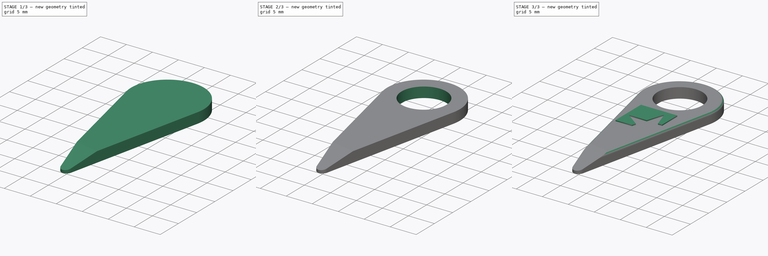
[diagram: build sequence overview — one tinted view per stage of 3, left to right]
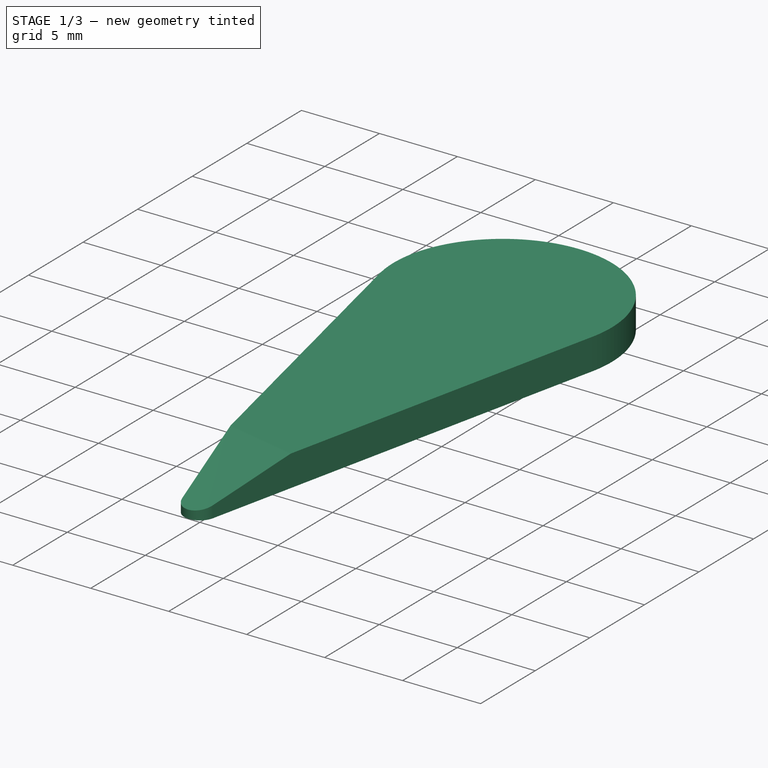
[diagram: stage 1 of 3 — iso view after this stage's code; geometry added in this stage tinted green]
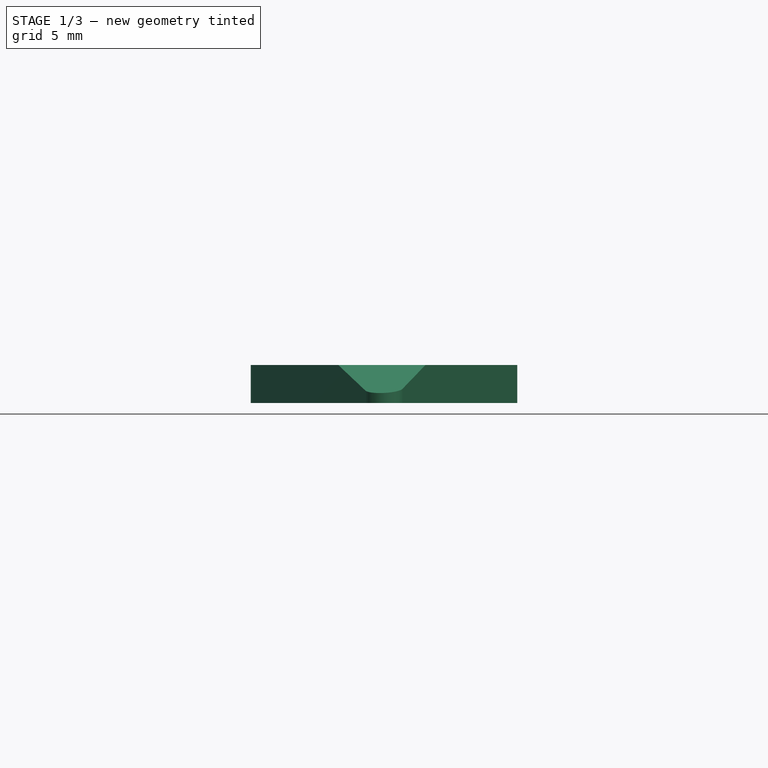
[diagram: stage 1 of 3 — front view after this stage's code; geometry added in this stage tinted green]
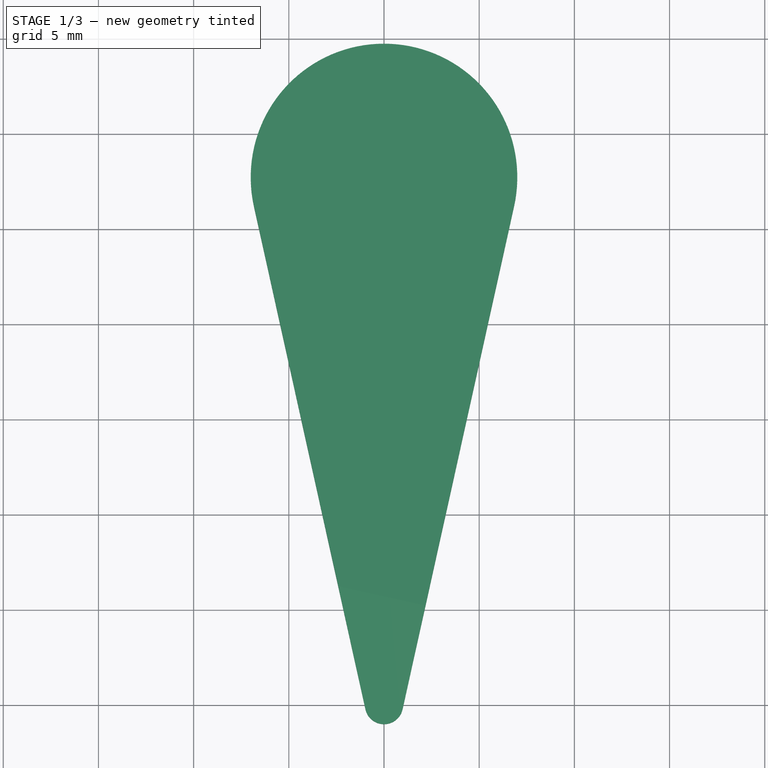
[diagram: stage 1 of 3 — top view after this stage's code; geometry added in this stage tinted green]
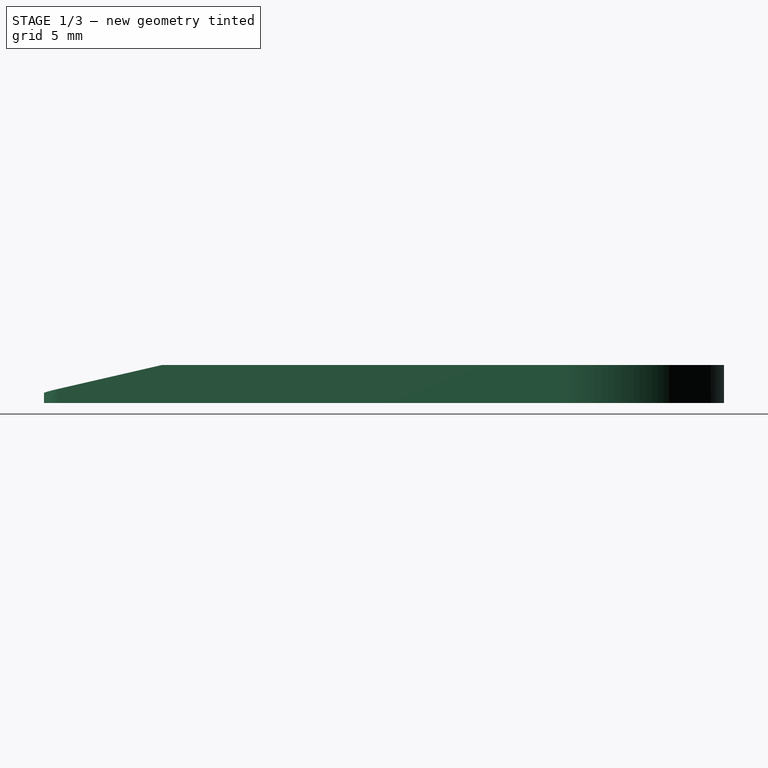
[diagram: stage 1 of 3 — right view after this stage's code; geometry added in this stage tinted green]
FCSTD DOCUMENT  (FreeCAD 0.15R4403 (Git))
Label: prying_tools
License: CC-BY 3.0
LicenseURL: http://creativecommons.org/licenses/by/3.0/
objects: Sketcher::SketchObject×5, PartDesign::Pad×2, PartDesign::Pocket×2, PartDesign::Fillet×1
note: 14 computed .brp shape members not serialized (recipe doc carries the construction recipe); baked Part::Feature solids carry a one-line shape summary decoded from their .brp

FEATURE [Sketcher::SketchObject] Sketch
  sketch-geometry (6):
    g0: LineSegment StartX=-0.976296 StartY=-0.21644 StartZ=0 EndX=-6.83408 EndY=26.2063 EndZ=0
    g1: LineSegment StartX=6.83408 StartY=26.2063 StartZ=0 EndX=0.976296 EndY=-0.21644 EndZ=0
    g2: ArcOfCircle CenterX=0 CenterY=27.7214 CenterZ=0 NormalX=0 NormalY=0 NormalZ=1 Radius=7 StartAngle=6.06502 EndAngle=9.64294
    g3: LineSegment [constr] StartX=-6.83408 StartY=26.2063 StartZ=0 EndX=0 EndY=26.2063 EndZ=0
    g4: LineSegment [constr] StartX=0 StartY=26.2063 StartZ=0 EndX=6.83408 EndY=26.2063 EndZ=0
    g5: ArcOfCircle CenterX=0 CenterY=0 CenterZ=0 NormalX=0 NormalY=0 NormalZ=1 Radius=1 StartAngle=3.35976 EndAngle=6.06502
  constraints (16):
    c: Equal(g0,g1)
    c: Angle(g1,g0) = 0.436332
    c: Tangent(g2,g0)
    c: Coincident(g1,g2)
    c: Radius(g2) = 7
    c: Coincident(g2,g0)
    c: Coincident(g3,g4)
    c: Coincident(g4,g1)
    c: Equal(g3,g4)
    c: Horizontal(g3)
    c: Horizontal(g4)
    c: Coincident(g0,g3)
    c: Tangent(g1,g5) = 1.5708
    c: Tangent(g0,g5) = 1.5708
    c: Coincident(g5,g-1)
    c: Radius(g5) = 1
FEATURE [PartDesign::Pad] Pad
  Length = 2
  Length2 = 100
  Sketch = -> Sketch
  Type = 0
FEATURE [Sketcher::SketchObject] Sketch001
  Placement = pos=(0.976296,-0.21644,0) rot=(0.661066,0.530562,0.530562;1.97336rad)
  Support = -> Pad [Face3]
  sketch-geometry (7):
    g0: LineSegment [constr] StartX=0 StartY=0 StartZ=0 EndX=-2 EndY=0 EndZ=0
    g1: LineSegment [constr] StartX=-2 StartY=0 StartZ=0 EndX=-2 EndY=0.3 EndZ=0
    g2: LineSegment StartX=-2 StartY=0.3 StartZ=0 EndX=10 EndY=3 EndZ=0
    g3: LineSegment [constr] StartX=10 StartY=3 StartZ=0 EndX=10 EndY=0 EndZ=0
    g4: LineSegment [constr] StartX=10 StartY=0 StartZ=0 EndX=0 EndY=0 EndZ=0
    g5: LineSegment StartX=-2 StartY=0.3 StartZ=0 EndX=-2 EndY=3 EndZ=0
    g6: LineSegment StartX=-2 StartY=3 StartZ=0 EndX=10 EndY=3 EndZ=0
  constraints (19):
    c: Coincident(g-1,g0)
    c: Coincident(g0,g1)
    c: Vertical(g1)
    c: Coincident(g1,g2)
    c: Coincident(g2,g3)
    c: Coincident(g3,g4)
    c: Coincident(g4,g0)
    c: Horizontal(g4)
    c: DistanceY(g1) = 0.3
    c: Horizontal(g0)
    c: Vertical(g3)
    c: DistanceX(g0) = -2
    c: DistanceX(g4) = -10
    c: DistanceY(g3) = -3
    c: Coincident(g1,g5)
    c: Vertical(g5)
    c: Coincident(g5,g6)
    c: Coincident(g6,g2)
    c: Horizontal(g6)
FEATURE [PartDesign::Pocket] Pocket
  Length = 5
  Sketch = -> Sketch001
  Type = 0
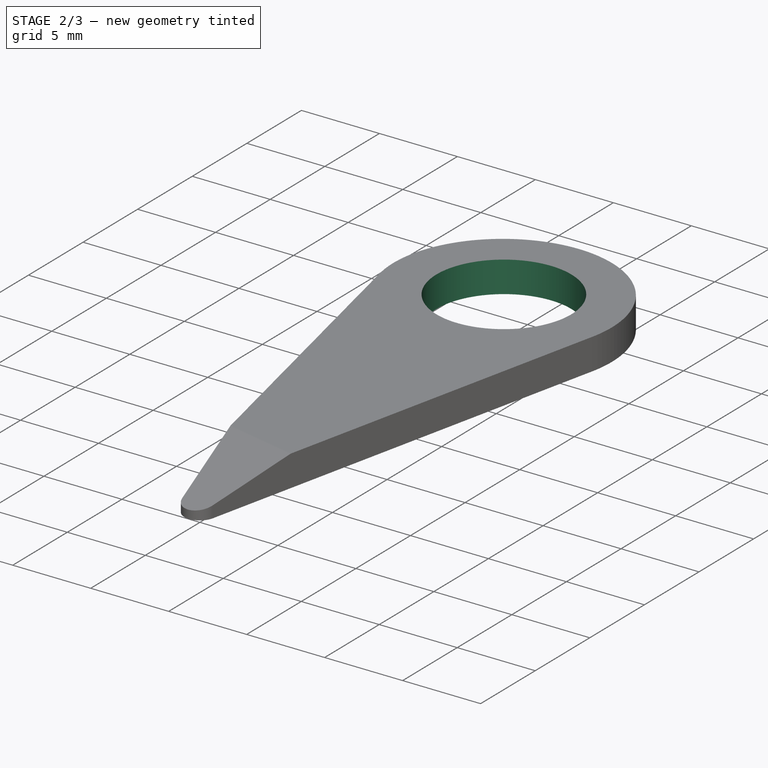
[diagram: stage 2 of 3 — iso view after this stage's code; geometry added in this stage tinted green]
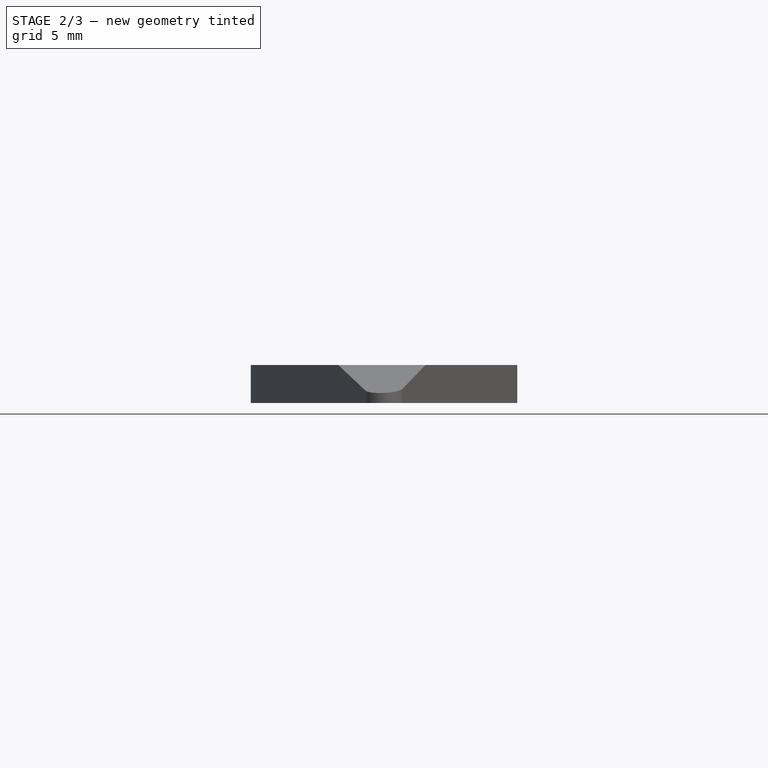
[diagram: stage 2 of 3 — front view after this stage's code; geometry added in this stage tinted green]
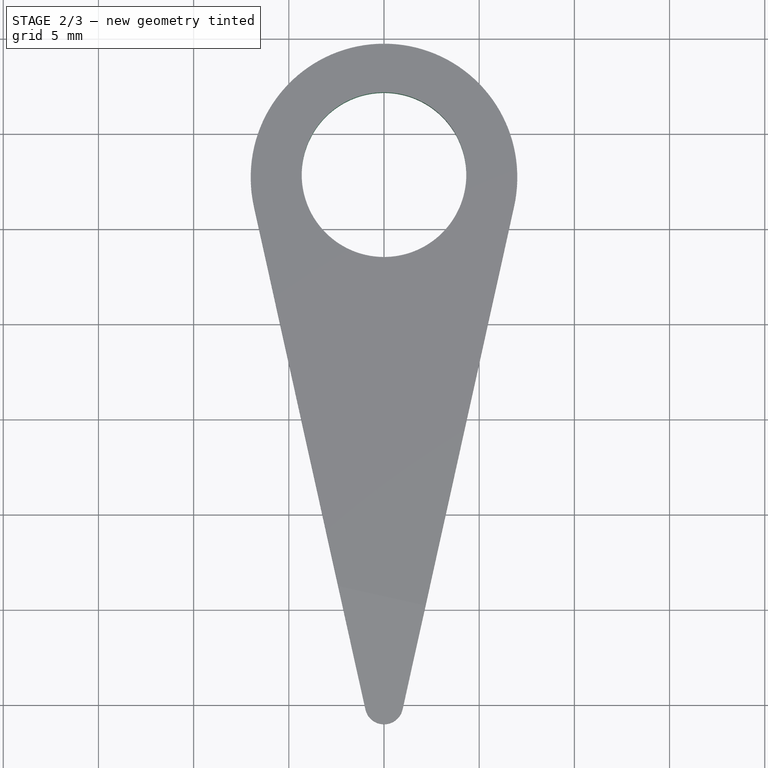
[diagram: stage 2 of 3 — top view after this stage's code; geometry added in this stage tinted green]
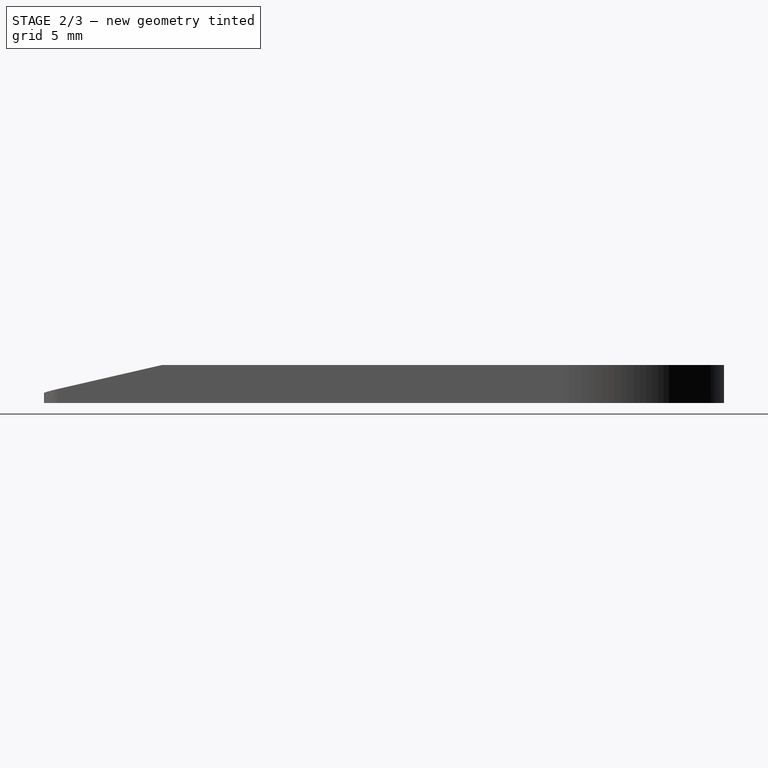
[diagram: stage 2 of 3 — right view after this stage's code; geometry added in this stage tinted green]
FEATURE [Sketcher::SketchObject] Sketch003
  sketch-geometry (1):
    g0: Circle CenterX=0 CenterY=27.9638 CenterZ=0 NormalX=0 NormalY=0 NormalZ=1 Radius=4.2
  constraints (3):
    c: PointOnObject(g0,g-2)
    c: Radius(g0) = 4.2
    c: DistanceY(g-1,g0) = 27.9638
FEATURE [Sketcher::SketchObject] Sketch004
  Placement = pos=(0,0,2) rot=(0,0,1;0rad)
  Support = -> Pocket [Face4]
  sketch-geometry (1):
    g0: Circle CenterX=0 CenterY=27.84 CenterZ=0 NormalX=0 NormalY=0 NormalZ=1 Radius=4.32335
  constraints (3):
    c: PointOnObject(g0,g-2)
    c: Radius(g0) = 4.32335
    c: DistanceY(g-1,g0) = 27.84
FEATURE [PartDesign::Pocket] Pocket001
  Length = 5
  Sketch = -> Sketch004
  Type = 0
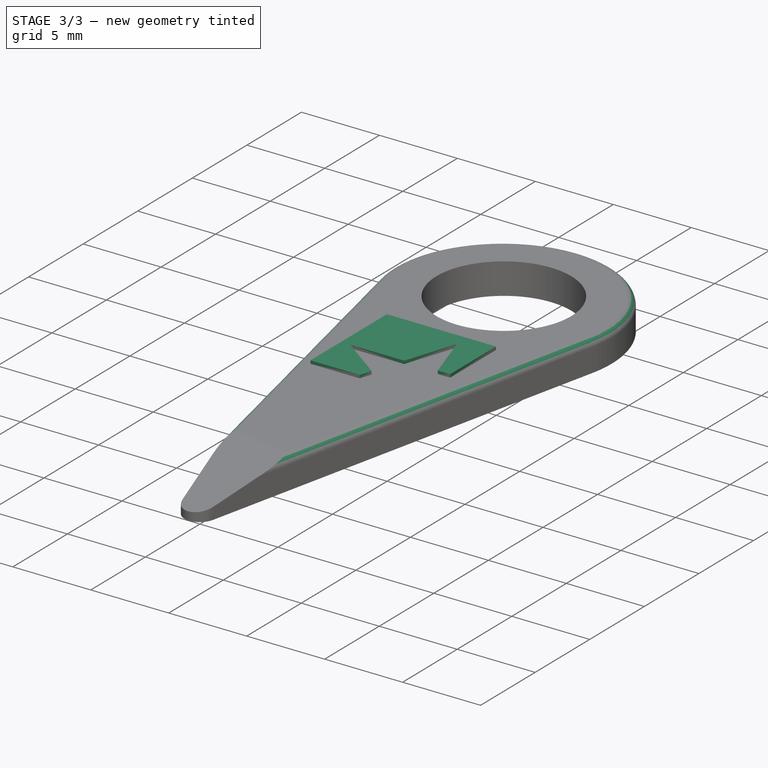
[diagram: stage 3 of 3 — iso view after this stage's code; geometry added in this stage tinted green]
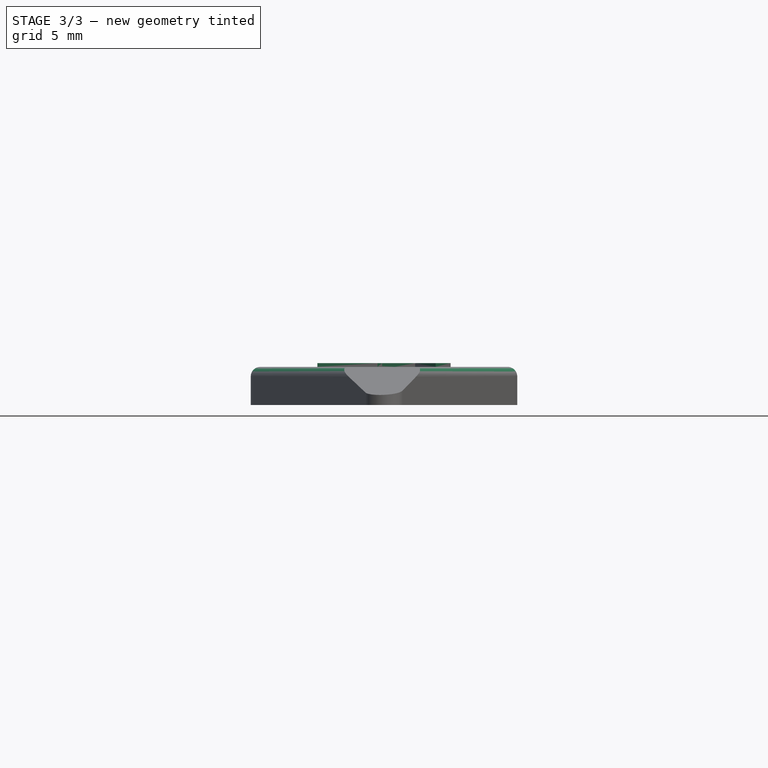
[diagram: stage 3 of 3 — front view after this stage's code; geometry added in this stage tinted green]
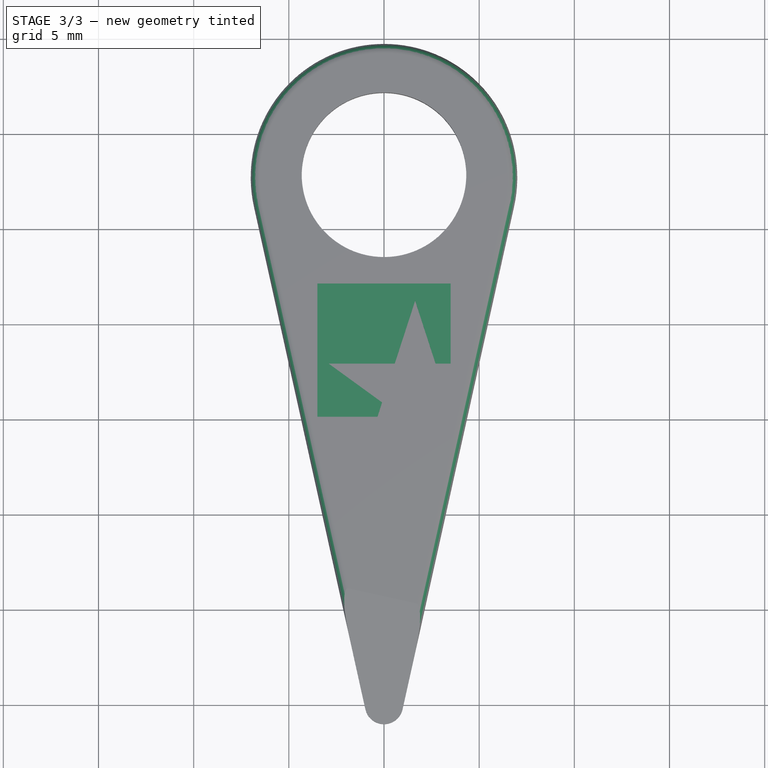
[diagram: stage 3 of 3 — top view after this stage's code; geometry added in this stage tinted green]
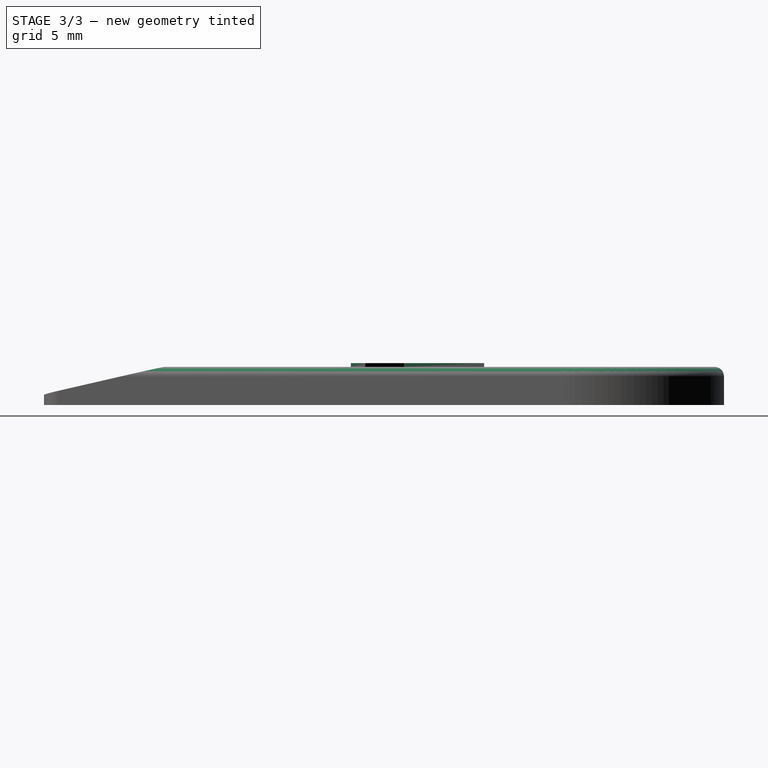
[diagram: stage 3 of 3 — right view after this stage's code; geometry added in this stage tinted green]
FEATURE [Sketcher::SketchObject] Sketch005  label="Base logo"
  Placement = pos=(0,0,2) rot=(0,0,1;0rad)
  Support = -> Pocket001 [Face4]
  sketch-geometry (12):
    g0: LineSegment StartX=-3.5 StartY=22.1216 StartZ=0 EndX=3.5 EndY=22.1216 EndZ=0
    g1: LineSegment StartX=3.5 StartY=22.1216 StartZ=0 EndX=3.5 EndY=17.9142 EndZ=0
    g2: LineSegment StartX=-0.343663 StartY=15.1216 StartZ=0 EndX=-3.5 EndY=15.1216 EndZ=0
    g3: LineSegment StartX=-3.5 StartY=15.1216 StartZ=0 EndX=-3.5 EndY=22.1216 EndZ=0
    g4: LineSegment StartX=3.5 StartY=17.9142 StartZ=0 EndX=2.70929 EndY=17.9142 EndZ=0
    g5: LineSegment StartX=2.70929 StartY=17.9142 StartZ=0 EndX=1.63649 EndY=21.2159 EndZ=0
    g6: LineSegment StartX=1.63649 StartY=21.2159 StartZ=0 EndX=0.563703 EndY=17.9142 EndZ=0
    g7: LineSegment StartX=0.563703 StartY=17.9142 StartZ=0 EndX=-2.90792 EndY=17.9142 EndZ=0
    g8: LineSegment StartX=-2.90792 StartY=17.9142 StartZ=0 EndX=-0.099319 EndY=15.8736 EndZ=0
    g9: LineSegment StartX=-0.099319 StartY=15.8736 StartZ=0 EndX=-0.343663 EndY=15.1216 EndZ=0
    g10: LineSegment [constr] StartX=-3.5 StartY=22.1216 StartZ=0 EndX=1.63649 EndY=21.2159 EndZ=0
    g11: LineSegment [constr] StartX=-3.5 StartY=15.1216 StartZ=0 EndX=1.63649 EndY=21.2159 EndZ=0
  constraints (34):
    c: Coincident(g0,g1)
    c: Coincident(g2,g3)
    c: Coincident(g3,g0)
    c: Horizontal(g0)
    c: Horizontal(g2)
    c: Vertical(g1)
    c: Vertical(g3)
    c: DistanceX(g0) = 7
    c: Equal(g3,g0)
    c: Horizontal(g4)
    c: Coincident(g4,g5)
    c: Coincident(g5,g6)
    c: Coincident(g6,g7)
    c: Horizontal(g7)
    c: Coincident(g7,g8)
    c: Coincident(g8,g9)
    c: Angle(g4,g5) = 1.88496
    c: Angle(g6,g5) = 0.628319
    c: Angle(g8,g7) = 0.628319
    c: Angle(g8,g9) = 1.88496
    c: Equal(g5,g6)
    c: Equal(g7,g8)
    c: Equal(g4,g9)
    c: Equal(g6,g7)
    c: Coincident(g0,g10)
    c: Coincident(g10,g5)
    c: Angle(g10,g0) = 0.174533
    c: Coincident(g2,g11)
    c: Coincident(g11,g5)
    c: Angle(g11,g3) = 0.70032
    c: Coincident(g1,g4)
    c: Coincident(g2,g9)
    c: DistanceY(g-1,g6) = 17.9142
    c: DistanceX(g-1,g0) = -3.5
FEATURE [PartDesign::Pad] Pad001
  Length = 0.2
  Length2 = 100
  Sketch = -> Sketch005
  Type = 0
FEATURE [PartDesign::Fillet] Fillet
  Base = -> Pad001 [Edge3]
  Radius = 0.5
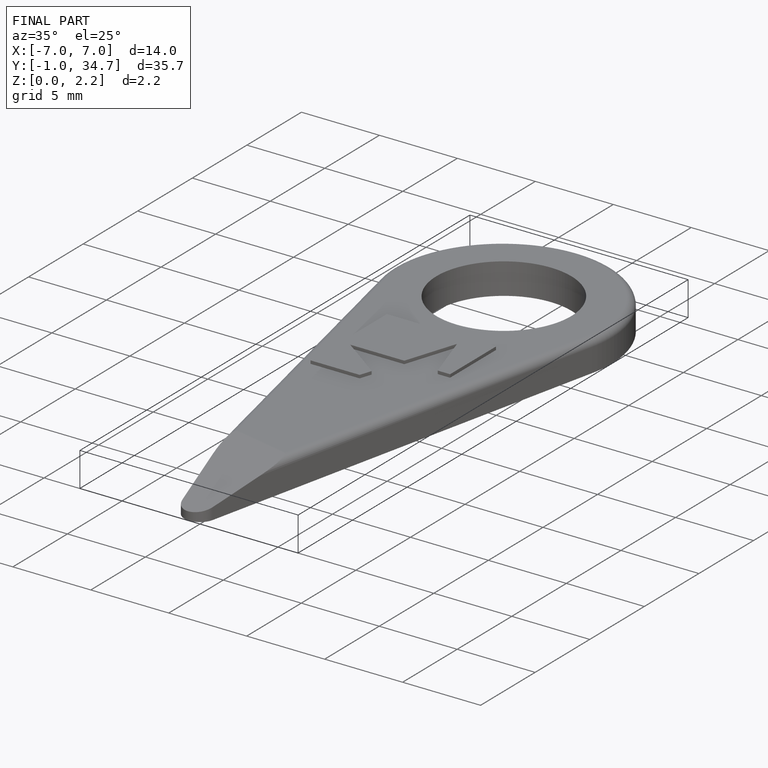
[diagram: finished part — iso view with bounding-box wireframe]
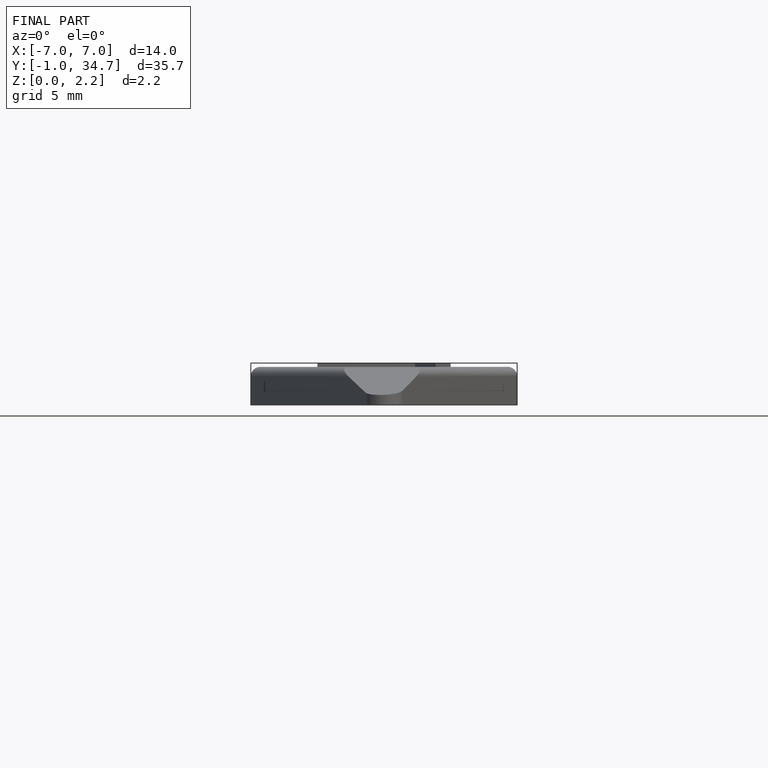
[diagram: finished part — front view with bounding-box wireframe]
